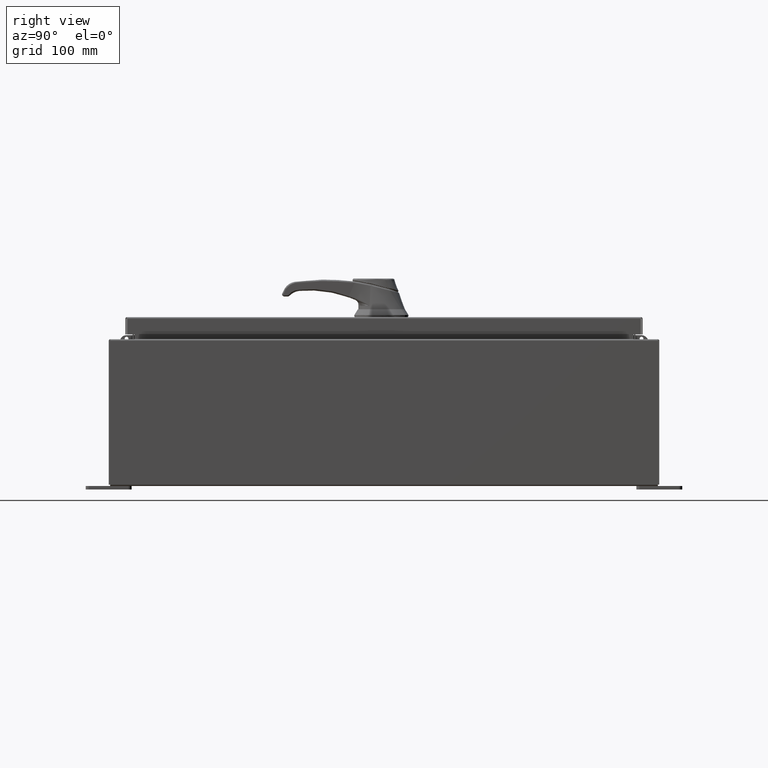
[diagram: clean part render]
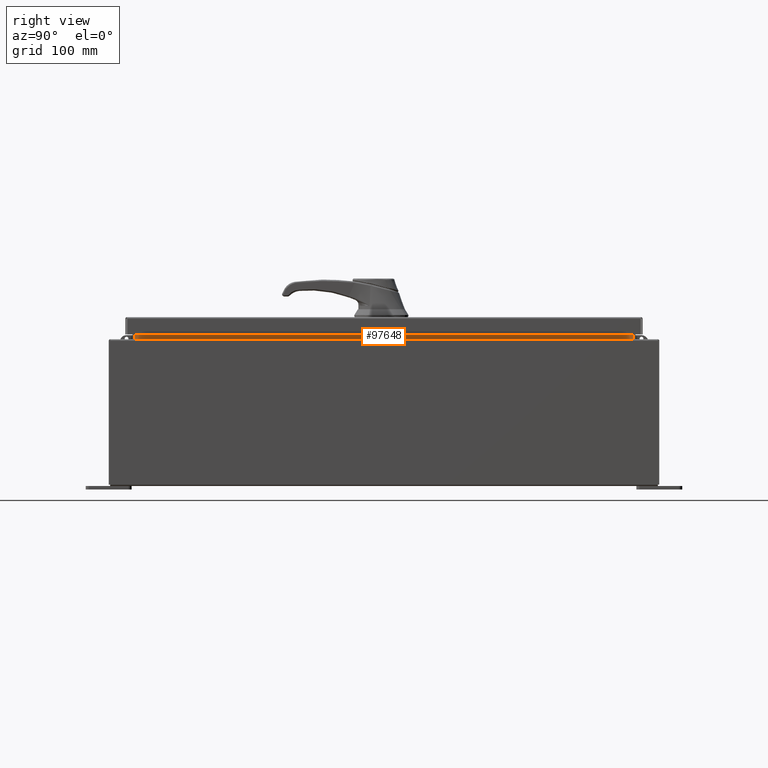
[diagram: same view with one face highlighted and labeled with its STEP entity id]
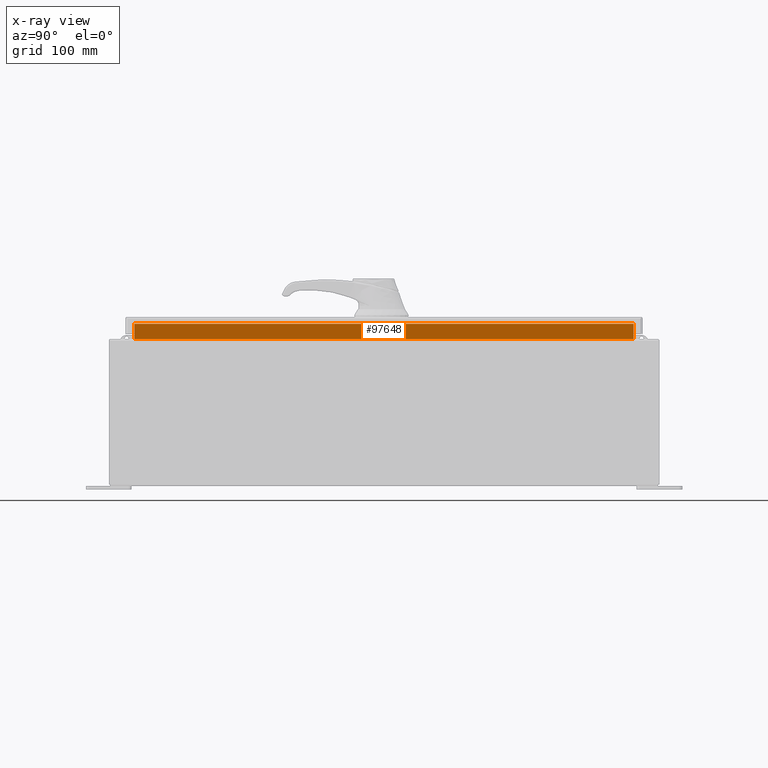
[diagram: x-ray of the same camera — body ghosted, the highlighted face saturated]
A machine part, right view. The second image highlights one B-rep face of the part: STEP entity #97648.
The next image is the same camera in x-ray: the body ghosted, the highlighted face saturated — about 0% of this face is hidden behind the body in this view.
In plain terms, the highlighted planar face has unit normal (1, -0, -0).
Its self-contained STEP definition (entity closure, byte-faithful):
#2631 = DIRECTION ( 'NONE',  ( 1.000000000000000000, -1.423975319009148500E-031, -3.542869979895294000E-015 ) ) ;
#5442 = CARTESIAN_POINT ( 'NONE',  ( 8.699700000000032000, -13.59374999999999800, 8.850600000000008900 ) ) ;
#6520 = ORIENTED_EDGE ( 'NONE', *, *, #23828, .F. ) ;
#8133 = CARTESIAN_POINT ( 'NONE',  ( 8.699700000000028400, 13.59375000000000700, 7.938300000000008800 ) ) ;
#14604 = FACE_OUTER_BOUND ( 'NONE', #37839, .T. ) ;
#17294 = DIRECTION ( 'NONE',  ( 4.019270611368110000E-017, -1.000000000000000000, 1.205781183410432900E-016 ) ) ;
#17959 = VERTEX_POINT ( 'NONE', #27150 ) ;
#20714 = CARTESIAN_POINT ( 'NONE',  ( 8.699700000000000000, -1.238815808278388900E-030, -3.082190596409509000E-014 ) ) ;
#23828 = EDGE_CURVE ( 'NONE', #79457, #58591, #29115, .T. ) ;
#23857 = DIRECTION ( 'NONE',  ( 3.542869979895298400E-015, -0.0000000000000000000, 1.000000000000000000 ) ) ;
#27150 = CARTESIAN_POINT ( 'NONE',  ( 8.699700000000028400, 13.59375000000000900, 7.938300000000009700 ) ) ;
#27337 = EDGE_CURVE ( 'NONE', #39223, #79457, #44339, .T. ) ;
#29115 = LINE ( 'NONE', #45448, #74788 ) ;
#36267 = CARTESIAN_POINT ( 'NONE',  ( 8.699700000000028400, -13.59375000000000000, 7.938300000000009700 ) ) ;
#37839 = EDGE_LOOP ( 'NONE', ( #114929, #6520, #50375, #59898 ) ) ;
#38496 = CARTESIAN_POINT ( 'NONE',  ( 8.699700000000032000, -13.59374999999999800, 8.762900000000009000 ) ) ;
#39070 = PLANE ( 'NONE',  #73421 ) ;
#39223 = VERTEX_POINT ( 'NONE', #36267 ) ;
#44339 = LINE ( 'NONE', #5442, #117338 ) ;
#45448 = CARTESIAN_POINT ( 'NONE',  ( 8.699700000000030200, -13.59374999999999800, 8.762900000000009000 ) ) ;
#46740 = VECTOR ( 'NONE', #83778, 39.37007874015748100 ) ;
#50375 = ORIENTED_EDGE ( 'NONE', *, *, #27337, .F. ) ;
#56777 = VECTOR ( 'NONE', #17294, 39.37007874015748100 ) ;
#57694 = CARTESIAN_POINT ( 'NONE',  ( 8.699700000000030200, 13.59375000000000700, 8.762900000000009000 ) ) ;
#58591 = VERTEX_POINT ( 'NONE', #57694 ) ;
#59898 = ORIENTED_EDGE ( 'NONE', *, *, #92339, .F. ) ;
#66587 = DIRECTION ( 'NONE',  ( -3.542869979895294000E-015, 0.0000000000000000000, -1.000000000000000000 ) ) ;
#73421 = AXIS2_PLACEMENT_3D ( 'NONE', #20714, #2631, #66587 ) ;
#74788 = VECTOR ( 'NONE', #118636, 39.37007874015748100 ) ;
#79457 = VERTEX_POINT ( 'NONE', #38496 ) ;
#81013 = LINE ( 'NONE', #8133, #56777 ) ;
#83778 = DIRECTION ( 'NONE',  ( -3.542869979895294000E-015, -0.0000000000000000000, -1.000000000000000000 ) ) ;
#92339 = EDGE_CURVE ( 'NONE', #17959, #39223, #81013, .T. ) ;
#92938 = EDGE_CURVE ( 'NONE', #58591, #17959, #116790, .T. ) ;
#97648 = ADVANCED_FACE ( 'NONE', ( #14604 ), #39070, .T. ) ;
#101794 = CARTESIAN_POINT ( 'NONE',  ( 8.699700000000028400, 13.59375000000000700, 7.925300000000008900 ) ) ;
#114929 = ORIENTED_EDGE ( 'NONE', *, *, #92938, .F. ) ;
#116790 = LINE ( 'NONE', #101794, #46740 ) ;
#117338 = VECTOR ( 'NONE', #23857, 39.37007874015748100 ) ;
#118636 = DIRECTION ( 'NONE',  ( 0.0000000000000000000, 1.000000000000000000, 0.0000000000000000000 ) ) ;